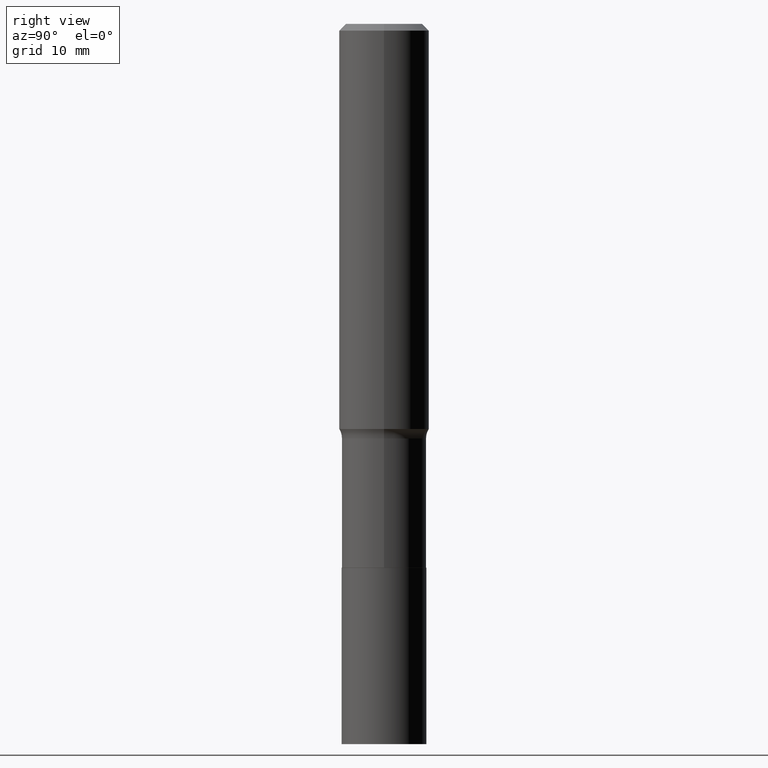
[diagram: clean part render]
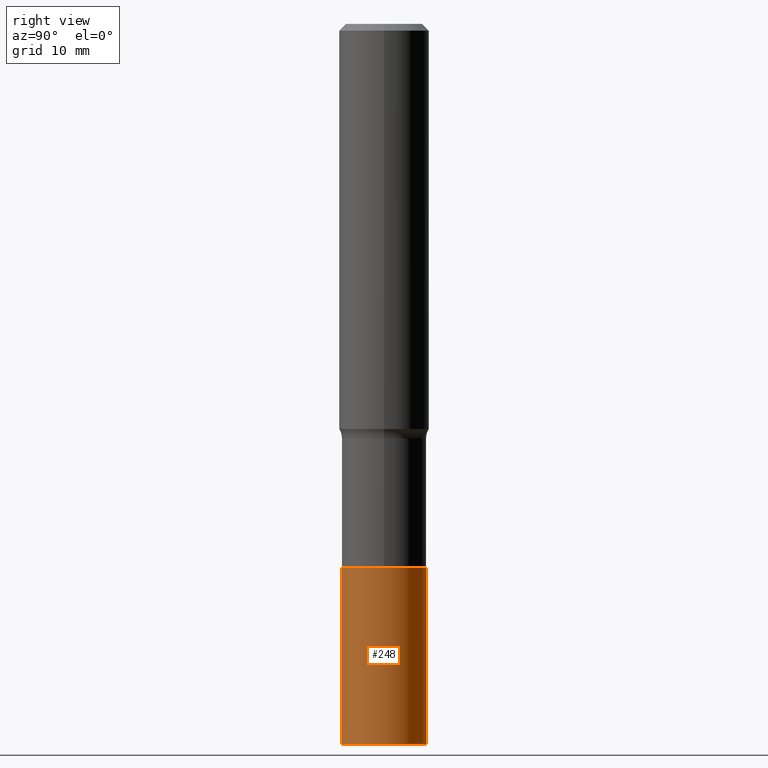
[diagram: same view with one face highlighted and labeled with its STEP entity id]
A machine part, right view. The second image highlights one B-rep face of the part: STEP entity #248.
In plain terms, the highlighted cylindrical surface (partial cylindrical patch) has radius 4.7003 mm, axis along (-0, 0, 1).
Its self-contained STEP definition (entity closure, byte-faithful):
#1 = CARTESIAN_POINT ( 'NONE',  ( 7.702667850016740557E-29, -1.099616916613917186E-14, -3.149600000000000843 ) ) ;
#8 = AXIS2_PLACEMENT_3D ( 'NONE', #1, #463, #434 ) ;
#47 = LINE ( 'NONE', #193, #268 ) ;
#51 = FACE_OUTER_BOUND ( 'NONE', #456, .T. ) ;
#59 = CARTESIAN_POINT ( 'NONE',  ( 1.314859332524142253E-15, 0.1850499999999916934, -2.377600000000001046 ) ) ;
#61 = AXIS2_PLACEMENT_3D ( 'NONE', #300, #158, #86 ) ;
#67 = ORIENTED_EDGE ( 'NONE', *, *, #445, .F. ) ;
#86 = DIRECTION ( 'NONE',  ( -6.982962677686265133E-15, -1.000000000000000000, 2.952551195530141356E-15 ) ) ;
#123 = VERTEX_POINT ( 'NONE', #59 ) ;
#126 = VERTEX_POINT ( 'NONE', #280 ) ;
#140 = VERTEX_POINT ( 'NONE', #242 ) ;
#158 = DIRECTION ( 'NONE',  ( -2.446011938382070337E-29, 3.490703542623971716E-15, 1.000000000000000000 ) ) ;
#159 = EDGE_CURVE ( 'NONE', #126, #404, #172, .T. ) ;
#169 = CARTESIAN_POINT ( 'NONE',  ( 5.814346633585781088E-29, -8.301346031233465092E-15, -2.377600000000000158 ) ) ;
#172 = LINE ( 'NONE', #319, #440 ) ;
#183 = EDGE_CURVE ( 'NONE', #126, #140, #234, .T. ) ;
#190 = DIRECTION ( 'NONE',  ( -2.446011938382070337E-29, 3.490703542623971321E-15, 1.000000000000000000 ) ) ;
#193 = CARTESIAN_POINT ( 'NONE',  ( 1.314859332524123320E-15, 0.1850499999999916934, -2.377600000000001046 ) ) ;
#198 = DIRECTION ( 'NONE',  ( -2.446011938382070337E-29, 3.490703542623971716E-15, 1.000000000000000000 ) ) ;
#226 = EDGE_CURVE ( 'NONE', #140, #123, #47, .T. ) ;
#229 = CYLINDRICAL_SURFACE ( 'NONE', #61, 0.1850499999999999923 ) ;
#234 = CIRCLE ( 'NONE', #8, 0.1850499999999999923 ) ;
#242 = CARTESIAN_POINT ( 'NONE',  ( 1.314859332524132787E-15, 0.1850499999999890011, -3.149600000000001288 ) ) ;
#248 = ADVANCED_FACE ( 'NONE', ( #51 ), #229, .T. ) ;
#259 = DIRECTION ( 'NONE',  ( -2.446011938382070337E-29, 3.490703542623971321E-15, 1.000000000000000000 ) ) ;
#268 = VECTOR ( 'NONE', #190, 39.37007874015748143 ) ;
#280 = CARTESIAN_POINT ( 'NONE',  ( -1.292197243505766373E-15, -0.1850500000000109835, -3.149600000000000399 ) ) ;
#284 = CIRCLE ( 'NONE', #442, 0.1850499999999999923 ) ;
#298 = CARTESIAN_POINT ( 'NONE',  ( -1.292197243505785109E-15, -0.1850500000000082912, -2.377599999999999714 ) ) ;
#300 = CARTESIAN_POINT ( 'NONE',  ( 5.814346633585781088E-29, -8.301346031233465092E-15, -2.377600000000000158 ) ) ;
#305 = ORIENTED_EDGE ( 'NONE', *, *, #159, .F. ) ;
#319 = CARTESIAN_POINT ( 'NONE',  ( -1.292197243505785109E-15, -0.1850500000000082912, -2.377599999999999714 ) ) ;
#350 = DIRECTION ( 'NONE',  ( -6.982962677686265133E-15, -1.000000000000000000, 2.952551195530141356E-15 ) ) ;
#362 = ORIENTED_EDGE ( 'NONE', *, *, #226, .T. ) ;
#374 = ORIENTED_EDGE ( 'NONE', *, *, #183, .T. ) ;
#404 = VERTEX_POINT ( 'NONE', #298 ) ;
#434 = DIRECTION ( 'NONE',  ( -6.982962677686265133E-15, -1.000000000000000000, 2.952551195530141356E-15 ) ) ;
#440 = VECTOR ( 'NONE', #259, 39.37007874015748143 ) ;
#442 = AXIS2_PLACEMENT_3D ( 'NONE', #169, #198, #350 ) ;
#445 = EDGE_CURVE ( 'NONE', #404, #123, #284, .T. ) ;
#456 = EDGE_LOOP ( 'NONE', ( #374, #362, #67, #305 ) ) ;
#463 = DIRECTION ( 'NONE',  ( -2.446011938382070337E-29, 3.490703542623971716E-15, 1.000000000000000000 ) ) ;